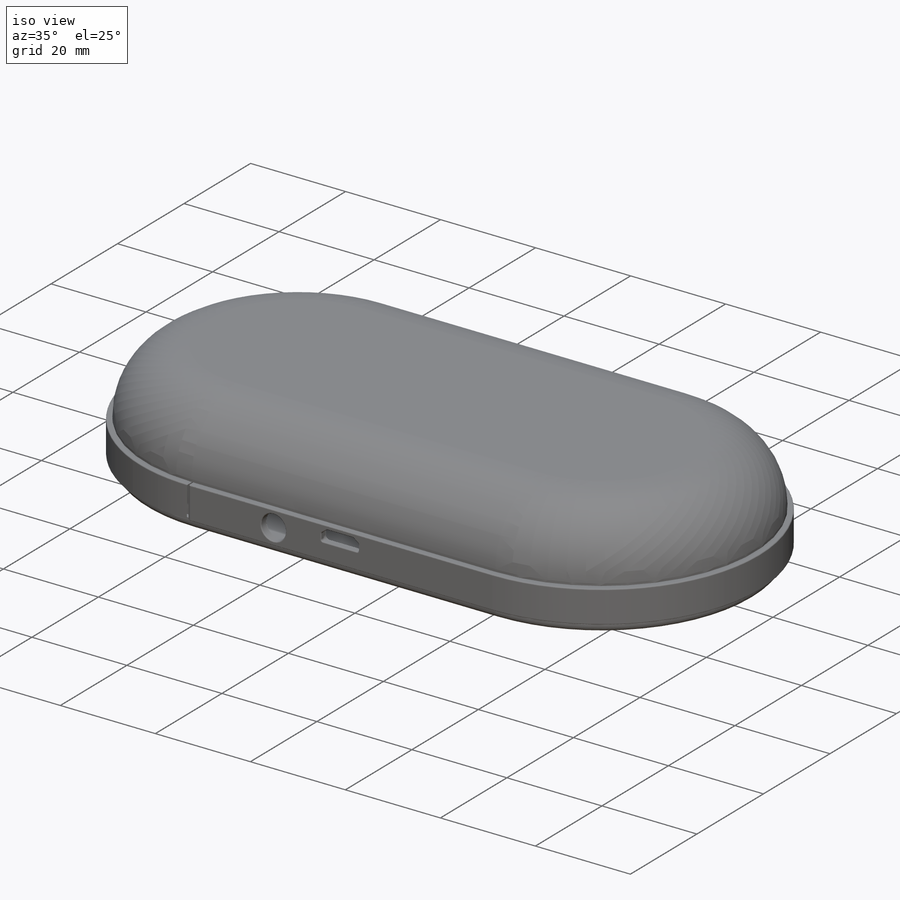
[diagram: iso view]
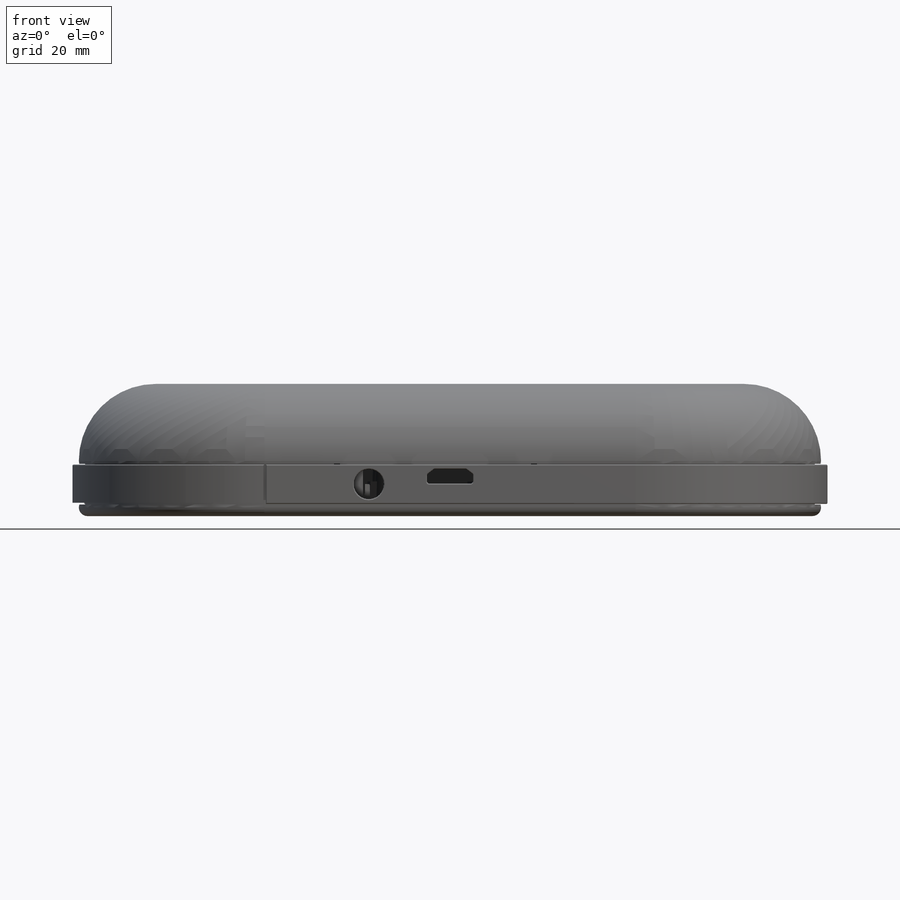
[diagram: front view]
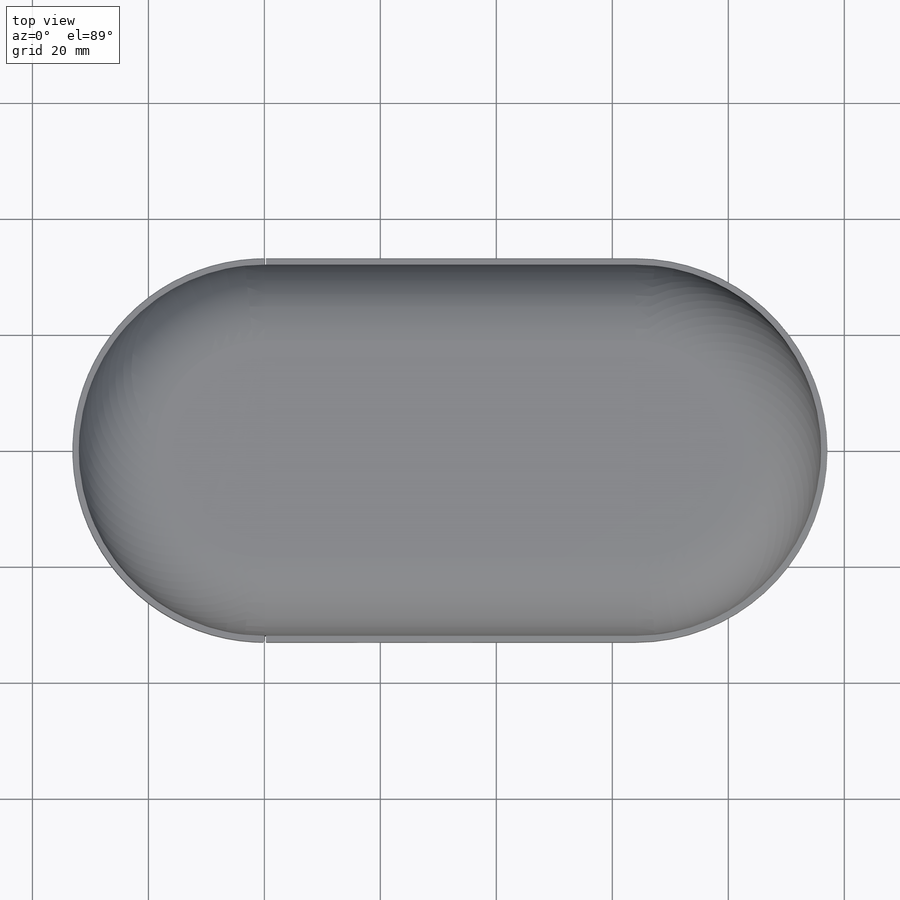
[diagram: top view]
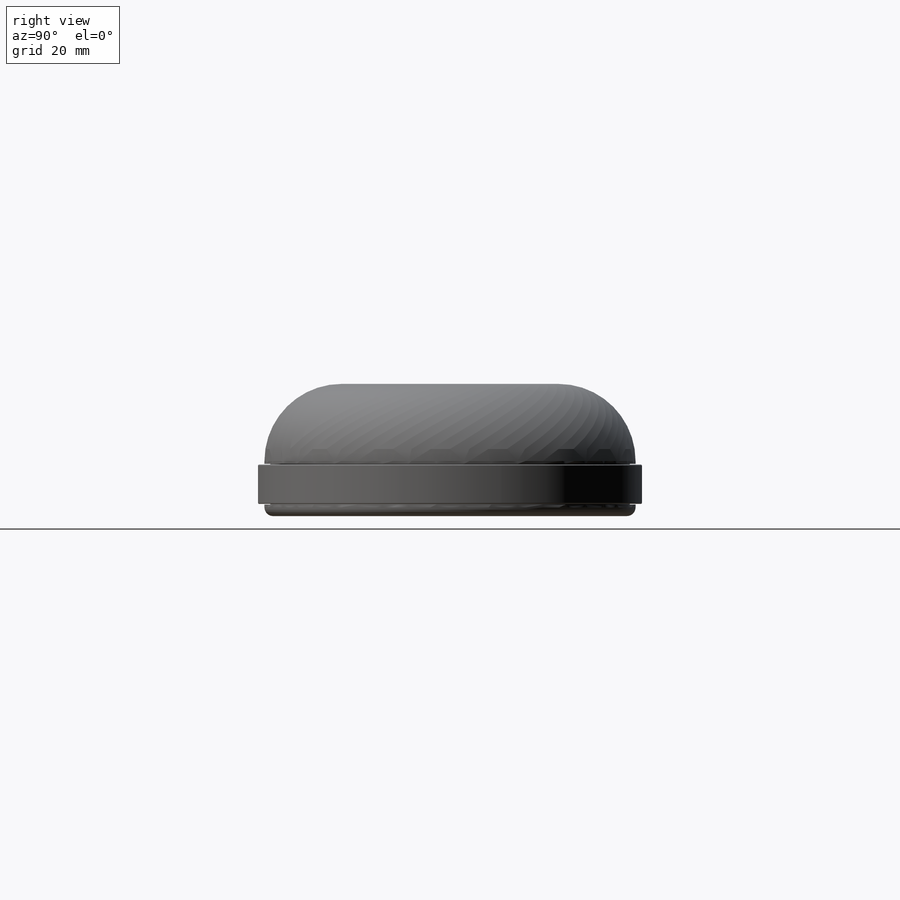
[diagram: right view]
SOLIDWORKS PART (.sldprt)
format: sldprt  version: not decoded by parser v0  size: 3,898,368 bytes
history: native  units: mm
features: sketch x107, extrude x51, cut_extrude x34, plane x17, fillet x12, chamfer x11, mirror x4, shell x3, material x1 (+12 scaffold rows collapsed)
feature tree (252):
  scaffold x12  (default folders/planes/origin — collapsed)
  material  "Material <not specified>"
  sketch  "Sketch1"  dims[D1=64.0mm D2=64.0mm]
  extrude  "ventral_base"  Depth=2mm
  sketch  "symmetry_lines"
  plane  "saggital plane"
  plane  "transverse plane"
  sketch  "lnd7317_diameter"  dims[D1=53.6mm]
  sketch  "Sketch3"  dims[D1=44.5mm]
  cut_extrude  "anterior_sensor_hole"  Depth=2mm
  sketch  "Sketch4"  dims[D1=3.0mm D2=2.0mm]
  extrude  "ventral_innerwall"  Depth=9mm
  sketch  "Sketch5"  dims[D1=54.0mm D2=58.0mm]
  extrude  "ventral_sensor_rail"  Depth=4mm
  sketch  "Sketch6"  dims[D1=0.5mm D2=3.0mm]
  extrude  "mesh_vhb"  Depth=0.2mm
  sketch  "Sketch7"  dims[D1=0.5mm]
  extrude  "mesh"  Depth=0.3mm
  sketch  "Sketch8"  dims[D1=0.5mm D2=3.0mm]
  extrude  "poron_gasket"  Depth=0.8mm
  sketch  "Sketch9"  dims[D1=53.6mm]
  extrude  "lnd7317_body"  Depth=15.5mm
  sketch  "lnd7317_minor_axis"  dims[c1.D1=49.3mm c1.D2=8.4mm c1.D3=~43.122094mm c2.D3=26.0deg]
  plane  "lnd7317_anode_plane"
  sketch  "Sketch10"  dims[D1=6.4mm]
  extrude  "lnd7317_anode_tip"  Depth=4mm
  plane  "lnd7317_shaft_sfc_trimmer"  Offset=10mm
  plane  "lnd7317_shaft_plane2"  Offset=6.3mm
  plane  "lnd7317_anode_shaft3"  Offset=14.5mm
  sketch  "Sketch19"  dims[D1=8.0mm]
  extrude  "lnd7317_anode_shaft2"  Depth=20mm
  sketch  "Sketch20"  dims[D1=13.0mm]
  extrude  "lnd7317_anode_shaft4"  Depth=20mm
  fillet  "lnd7317_topfillet"  Radius=2.5mm
  plane  "cathode_wire_approxplane"  Offset=3mm
  sketch  "Sketch21"
  extrude  "cathode_wire_volume"  Depth=20mm
  sketch  "Sketch11"  dims[D1=1.0mm]
  extrude  "dorsal_base"  Depth=4mm
  sketch  "Sketch12"  dims[D1=1.0mm]
  extrude  "dorsal_overhang"  Depth=7mm
  fillet  "dorsal_fillet"  Radius=13.3mm
  shell  "dorsal_shell"  Thickness=2mm
  sketch  "Sketch14"
  extrude  "dorsal_shell_cleanup"  Depth=10mm
  plane  "trim_startplane"  Offset=0.1mm
  sketch  "Sketch15"  dims[D2=0.25mm D3=0.25mm D1=0.1mm D4=2.0mm]
  extrude  "trim_large"  Depth=0.1mm
  sketch  "Sketch16"  dims[D1=0.1mm D2=2.0mm]
  extrude  "trim_small"  Depth=0.1mm
  sketch  "Sketch17"  dims[D1=15.0mm D2=20.0mm]
  cut_extrude  "io_cut_bottomshell"  [1 undecoded]
  sketch  "Sketch18"
  cut_extrude  "io_cut_topshell"  Depth=0.5mm
  sketch  "Sketch22"  dims[c1.D1=~0.969824mm c1.D2=1.9mm c2.D1=20.0mm c2.D3=3.3mm c2.D4=2.4mm c2.D5=3.0mm]
  cut_extrude  "left_screwhole"  [1 undecoded]
  chamfer  "left_screwhole_enabler"  Distance=1mm Angle=30deg
  sketch  "Sketch23"  dims[D1=1.9mm D2=1.9mm D3=4.5mm D4=4.0mm D5=3.0mm D6=2.4mm D7=3.0mm D8=3.0mm D9=2.4mm D10=4.0mm]
  cut_extrude  "right_screwhole"  [1 undecoded]
  shell  "right_screwhole_enabler"  Thickness=1mm
  plane  "anterior_plane"  Offset=64mm
  plane  "posterior_plane"  Offset=64mm
  sketch  "Sketch25"  dims[D1=1.5mm D2=2.0mm]
  cut_extrude  "anterior_alignment_hole"  Depth=20mm
  sketch  "Sketch26"  dims[D1=2.0mm D2=1.0mm]
  cut_extrude  "posterior_alignment_hole"  Depth=20mm
  sketch  "posterior_sh_tangencies"  dims[c1.D1=~38.309051mm c2.D1=10.0deg]
  sketch  "posterior_sh_tangencynorms"
  plane  "lt_sh_plane"
  sketch  "Sketch30"  dims[D1=2.3mm D2=3.3mm]
  cut_extrude  "left_posterior_trim_hookhole"  Depth=20mm
  sketch  "Sketch32"  dims[D1=1.0mm BaseDepth=1.4mm TopDepth=1.0mm Width=2.0mm HookHeight=1.0mm Overhang=0.5mm BodyHeight=4.1mm Draft=1.5deg LipHeight=0.3mm]
  sketch  "Sketch33"
  chamfer  "Snap Hook2"  Distance=1.4mm Angle=1.5deg BaseDepth=1.4mm TopDepth=1mm Width=2mm HookHeight=1mm Overhang=0.5mm BodyHeight=4.1mm Draft=1.5deg LipHeight=0.3mm
  sketch  "Sketch34"  dims[D1=0.1mm]
  extrude  "left_anterior_alignment_peg"  Depth=1mm
  sketch  "Sketch35"  dims[D1=1.3mm D2=1.3mm]
  cut_extrude  "left_screw_clearance"  Depth=0.8mm
  sketch  "Sketch44"  dims[D1=1.3mm D2=1.3mm]
  cut_extrude  "right_screw_clearance"  Depth=0.8mm
  mirror  "anterior trim symmetry"
  sketch  "sh_locater3"
  sketch  "3DSketch2"
  plane  "snap_face_plane"
  sketch  "Sketch37"  dims[D1=1.0mm]
  cut_extrude  "left_trim_sh_snap_face"  Depth=0.8mm
  chamfer  "Snap Hook3"  Distance=1.4mm Angle=1.500004deg BaseDepth=1.4mm TopDepth=1mm Width=2mm HookHeight=1mm Overhang=0.5mm BodyHeight=3.924502mm Draft=1.500004deg LipHeight=0.3mm
  sketch  "sh_locater4"
  sketch  "3DSketch4"
  chamfer  "Snap Hook4"  Distance=1.4mm Angle=1.500004deg BaseDepth=1.4mm TopDepth=1mm Width=2mm HookHeight=1mm Overhang=0.5mm BodyHeight=3.924475mm Draft=1.500004deg LipHeight=0.3mm
  mirror  "Mirror4"
  mirror  "Mirror5"
  sketch  "Sketch42"  dims[D1=0.1mm]
  extrude  "anterior_alignment_peg"  Depth=4mm
  sketch  "Sketch43"  dims[D1=0.1mm]
  extrude  "posterior_alignment_peg"  Depth=4mm
  sketch  "Sketch45"  dims[c1.D1=0.2mm c1.D2=~0.775513mm c2.D2=90.0deg c3.D2=0.8mm c3.D3=1.0mm c3.D4=1.0mm]
  extrude  "ventral_gap_sealer"  Depth=0.6mm
  sketch  "Sketch46"  dims[D1=5.2mm D2=6.0mm]
  cut_extrude  "audio_jack_hole"  Depth=2mm
  sketch  "trim_midpoint"
  plane  "trim_midplane"
  plane  "pcb_plane"  Offset=2.6mm
  sketch  "Sketch47"  dims[c1.D5=0.4mm c1.D1=5.5mm c1.D2=3.95mm c1.D3=2.2mm c1.D4=1.6mm c2.D1=2.75mm c2.D3=2.5mm]
  cut_extrude  "micro_USB_hole"  Depth=2mm
  sketch  "Sketch48"  dims[c1.D1=4.0mm c1.D2=4.0mm c2.D1=10.0mm c2.D2=25.0mm]
  sketch  "Sketch49"
  chamfer  "Mounting Boss1"  Distance=5mm Angle=2deg BossDiam=5mm BossHeight=6.1mm FinHeight=4mm FinLength=3mm FinWidth=1mm InsDiam=1.6mm InsHeight=6mm BossDraft=2deg FinDraft=1deg InsDraft=2deg
  sketch  "Sketch50"  dims[c1.D1=5.0mm c1.D2=15.0mm c2.D1=31.0mm c2.D2=23.0mm]
  chamfer  "Mounting Boss2"  Distance=5mm Angle=2deg BossDiam=5mm BossHeight=6.1mm FinHeight=4mm FinLength=3mm FinWidth=1mm InsDiam=1.6mm InsHeight=6mm BossDraft=2deg FinDraft=1deg InsDraft=2deg
  sketch  "Sketch51"  dims[D1=14.0mm]
  chamfer  "Mounting Boss3"  Distance=4mm Angle=2deg BossDiam=4mm BossHeight=6.1mm FinHeight=4mm FinLength=3mm FinWidth=1mm InsDiam=1.6mm InsHeight=6mm BossDraft=2deg FinDraft=1deg InsDraft=2deg
  sketch  "Sketch52"  dims[c1.D1=40.0mm c1.D2=21.0mm c2.D1=23.0mm]
  chamfer  "Mounting Boss4"  Distance=5mm Angle=2deg BossDiam=5mm BossHeight=6.1mm FinHeight=4mm FinLength=1mm FinWidth=1mm InsDiam=1.6mm InsHeight=6mm BossDraft=2deg FinDraft=1deg InsDraft=2deg
  sketch  "Sketch53"  dims[c1.D1=36.0mm c1.D2=34.0mm c1.D3=25.0mm c1.D4=19.0mm c2.D3=15.0mm]
  extrude  "battery_gm043436"  Depth=6mm
  sketch  "Sketch54"  dims[D3=1.2mm D4=1.0mm D5=0.25mm D6=1.0mm D7=22.0mm D8=3.0mm D1=0.25mm D2=1.25mm]
  extrude  "battery_holder"  Depth=3.5mm
  sketch  "Sketch56"  dims[D1=55.0mm]
  chamfer  "Locating pin 1"  Distance=3mm Angle=2deg BossDiam=3mm BossHeight=6.1mm FinHeight=4mm FinLength=2.2mm FinWidth=1mm InsDiam=1.5mm InsHeight=3mm BossDraft=2deg FinDraft=1deg InsDraft=1.5deg
  sketch  "Sketch57"  dims[c1.D1=9.0mm c1.D2=7.5mm c2.D1=7.0mm c2.D2=12.0mm]
  chamfer  "Locating pin 2"  Distance=3mm Angle=2deg BossDiam=3mm BossHeight=6.1mm FinHeight=4mm FinLength=2.2mm FinWidth=1mm InsDiam=1.5mm InsHeight=3mm BossDraft=2deg FinDraft=1deg InsDraft=1.5deg
  sketch  "Sketch55"  dims[c1.D7=30.5861mm c1.D9=~1.343409mm c1.D11=3.0mm c1.D12=3.0mm c1.D13=3.0mm c1.D1=1.5mm c1.D2=1.5mm c1.D3=1.5mm c1.D4=1.0mm c1.D5=1.0mm c1.D6=9.0mm c2.D7=3.5mm c2.D8=12.0mm c2.D9=0.05mm c2.D10=0.05mm]
  extrude  "pcb"  Depth=1mm
  sketch  "Sketch59"  dims[D1=34.0mm D2=34.0mm D3=1.0mm]
  extrude  "oled_panel"  Depth=1.5mm
  sketch  "Sketch60"  dims[D1=34.0mm D2=26.0mm D3=7.0mm]
  extrude  "captouch_pcb"  Depth=1.5mm
  sketch  "Sketch61"  dims[D1=3.5mm]
  extrude  "iframe_base"  Depth=2mm
  sketch  "Sketch62"  dims[D1=0.2mm]
  extrude  "iframe_rails"  Depth=1.3mm
  sketch  "Sketch63"  dims[D1=2.0mm D2=2.5mm D3=2.0mm]
  cut_extrude  "iframe_cutouts"  [1 undecoded]
  sketch  "Sketch64"  dims[D1=8.0mm D2=1.0mm D3=3.5mm D4=0.3mm]
  extrude  "iframe_bumpers"  Depth=1.1mm
  sketch  "Sketch65"  dims[D1=23.0mm]
  cut_extrude  "iframe_sensor_clearance"  [1 undecoded]
  sketch  "Sketch66"  dims[D1=2.0mm]
  cut_extrude  "iframe_oled_cable_feed"  [1 undecoded]
  plane  "secondary_boss_plane"  Offset=3mm
  sketch  "Sketch70"  dims[D4=2.1mm D5=2.1mm D6=2.1mm D1=1.5mm D2=1.5mm D3=1.5mm]
  extrude  "iframe_boss1"  [1 undecoded]
  sketch  "Sketch71"  dims[c1.D1=~3.28999mm c1.D2=4.2mm c1.D3=4.2mm c1.D4=5.2mm c2.D1=0.75mm c2.D4=0.75mm c2.D5=~16.608565mm c3.D5=26.0deg]
  extrude  "iframe_extension1"  Depth=2mm
  sketch  "Sketch72"  dims[D1=2.3mm]
  extrude  "iframe_riser1"  [1 undecoded]
  sketch  "Sketch73"
  cut_extrude  "dorsal_shell_pcb_affordance"  Depth=1.5mm
  sketch  "Sketch74"
  extrude  "iframe_to_pcb_alignment"  Depth=0.5mm
  fillet  "iframe_to_pcb_easing"  Radius=0.15mm
  fillet  "ventral_cosmetic_fillet"  Radius=1.5mm
  fillet  "ventral_sensor_fillet"  Radius=1.5mm
  sketch  "Sketch75"  dims[D1=2.0mm D2=2.0mm]
  cut_extrude  "hv_boardaffordance"  Depth=2mm
  plane  "hv_board_plane"  Offset=2.5mm
  sketch  "Sketch76"  dims[D1=36.4mm D2=14.8mm]
  extrude  "hv_board"  Depth=1.65mm
  fillet  "cosmetic_fillet1"  Radius=0.2mm
  fillet  "cosmetic_fillet2"  Radius=0.2mm
  sketch  "Sketch77"  dims[c1.D2=~1.180951mm c1.D1=5.0mm c2.D2=6.5mm c2.D3=2.0mm c2.D4=3.0mm]
  cut_extrude  "ventral_hold_switch"  Depth=10mm
  sketch  "Sketch80"  dims[D1=2.5mm D2=2.5mm D3=0.8mm D4=0.8mm D5=0.8mm]
  extrude  "hold_switch_guide"  Depth=2mm
  sketch  "Sketch125"
  cut_extrude  "tweak_hold_switch"  Depth=10mm
  sketch  "Sketch81"  dims[D1=0.1mm D2=0.5mm D3=2.5mm]
  extrude  "hold_switch_body"  Depth=2mm
  sketch  "Sketch83"  dims[D1=0.2mm]
  extrude  "hold_switch_actuator"  Depth=2mm
  sketch  "Sketch84"  dims[D1=0.4mm]
  cut_extrude  "hold_switch_indicator"  Depth=0.3mm
  fillet  "hold_switch_fillet"  Radius=1.2mm
  sketch  "Sketch85"  dims[D1=1.6mm D2=1.6mm D3=1.0mm]
  cut_extrude  "hold_switch_slot"  Depth=2mm
  sketch  "Sketch86"  dims[D1=1.0mm]
  extrude  "hold_switch_flushmount"  Depth=0.4mm
  sketch  "Sketch87"  dims[c1.D3=~1.342884mm c1.D1=2.5mm c1.D2=6.0mm c2.D3=15.25mm]
  cut_extrude  "lanyard_cut"  Depth=10mm
  sketch  "Sketch88"  dims[D1=1.0mm]
  extrude  "lanyard_body"  Depth=4mm
  sketch  "Sketch89"  dims[D1=2.0mm]
  extrude  "lanyard_attach"  Depth=2mm
  sketch  "Sketch90"  dims[D1=0.3mm D2=0.2mm]
  extrude  "lanyard_cap"  Depth=2mm
  plane  "lanyard_support_plane"
  sketch  "Sketch91"  dims[c1.D1=~10.164221mm c2.D1=45.0deg]
  extrude  "lanyard_support"  Depth=1mm
  sketch  "Sketch92"  dims[D1=1.2mm D2=0.5mm]
  cut_extrude  "pcb_lanyard_tweak"  Depth=2mm
  fillet  "lanyard_fillet"  Radius=0.4mm
  sketch  "Sketch93"  dims[D1=3.0mm D2=2.5mm]
  cut_extrude  "pcb_anode_tweak"  Depth=10mm
  sketch  "Sketch94"  dims[D2=14.0mm D3=5.0mm D1=0.0mm]
  cut_extrude  "pcb_feature_guide_bottom"  Depth=0.1mm
  sketch  "Sketch95"  dims[D1=0.7mm]
  cut_extrude  "pcb_edge_fixup1"  [1 undecoded]
  sketch  "Sketch96"  dims[D1=0.0mm]
  extrude  "pcb_edge_fixup2"  Depth=0.3mm
  sketch  "Sketch99"  dims[D1=2.0mm]
  extrude  "iframe_fixup_stiffenerbar"  [1 undecoded]
  sketch  "Sketch100"  dims[D1=0.4mm]
  cut_extrude  "microusb_fixup"  Depth=1.2mm
  sketch  "Sketch101"  dims[D1=0.9mm]
  cut_extrude  "pcb_fixup3"  [1 undecoded]
  sketch  "Sketch102"  dims[D1=8.0mm D2=2.6mm D3=2.6mm]
  cut_extrude  "headphone_fixup1"  Depth=0.4mm
  sketch  "Sketch104"  dims[D1=1.2mm]
  chamfer  "fixup_boss1"  Distance=5mm Angle=2deg BossDiam=5mm BossHeight=6.1mm FinHeight=4mm FinLength=3mm FinWidth=1mm InsDiam=1.6mm InsHeight=6mm BossDraft=2deg FinDraft=1deg InsDraft=2deg
  sketch  "Sketch105"  dims[D1=5.0mm D2=2.1mm]
  extrude  "fixup_leg_boss1"  Depth=3mm
  sketch  "Sketch106"  dims[c1.D1=1.5mm c2.D1=45.0deg c2.D2=1.0mm c2.D3=0.3mm]
  extrude  "fixup_extend_frame"  Depth=3mm
  sketch  "Sketch107"  dims[D1=0.5mm D2=0.5mm D3=4.7mm]
  extrude  "fixup_boss_extension"  Depth=2mm
  sketch  "Sketch108"  dims[D1=4.2mm D2=0.5mm]
  extrude  "fixup_boss_reinforced"  [1 undecoded]
  fillet  "fixup_case_interference_fillet"  Radius=3.4mm
  fillet  "fixup_reinforce_fillet"  Radius=2mm
  sketch  "Sketch110"
  cut_extrude  "fixup_remove_interfering_boss"  [1 undecoded]
  sketch  "Sketch116"  dims[D1=0.1mm]
  extrude  "lnd7317_connector"  Depth=8.3mm
  shell  "fixup_reinforce_chamfer"  Thickness=2mm
  sketch  "Sketch117"
  cut_extrude  "fixup_remove_original_arm"  Depth=10mm
  sketch  "Sketch118"  dims[D1=7.55mm]
  extrude  "fixup_boss_support"  Depth=6.1mm
  sketch  "Sketch119"  dims[c1.D1=~8.788112mm c2.D1=45.0deg c3.D1=~8.623496mm c4.D1=40.0deg]
  cut_extrude  "fixup_boss_angle"  Depth=2.5mm
  sketch  "Sketch120"  dims[D1=2.5mm]
  sketch  "Sketch121"  dims[D1=4.0mm D2=2.5mm]
  sketch  "Sketch122"  dims[D1=0.0mm D2=0.0mm]
  extrude  "frame_endcap1"  Depth=1.5mm
  sketch  "Sketch123"  dims[D1=1.2mm]
  extrude  "frame_endcap2"  [1 undecoded]
  fillet  "frame_endcap_fillet"  Radius=0.8mm
  sketch  "Sketch124"  dims[D1=1.0mm D2=2.5mm]
  cut_extrude  "irover_cut_tweak"  [1 undecoded]
  mirror  "Mirror6"
decode coverage: 186 of 222 modeling features carry decoded parameters
note: ~ marks probable driven/reference dimensions
note: 15 parameter values undecoded
summary: no parameter record found for 15 features
note: suppression state not decoded; provenance and decode notes live in map.json
